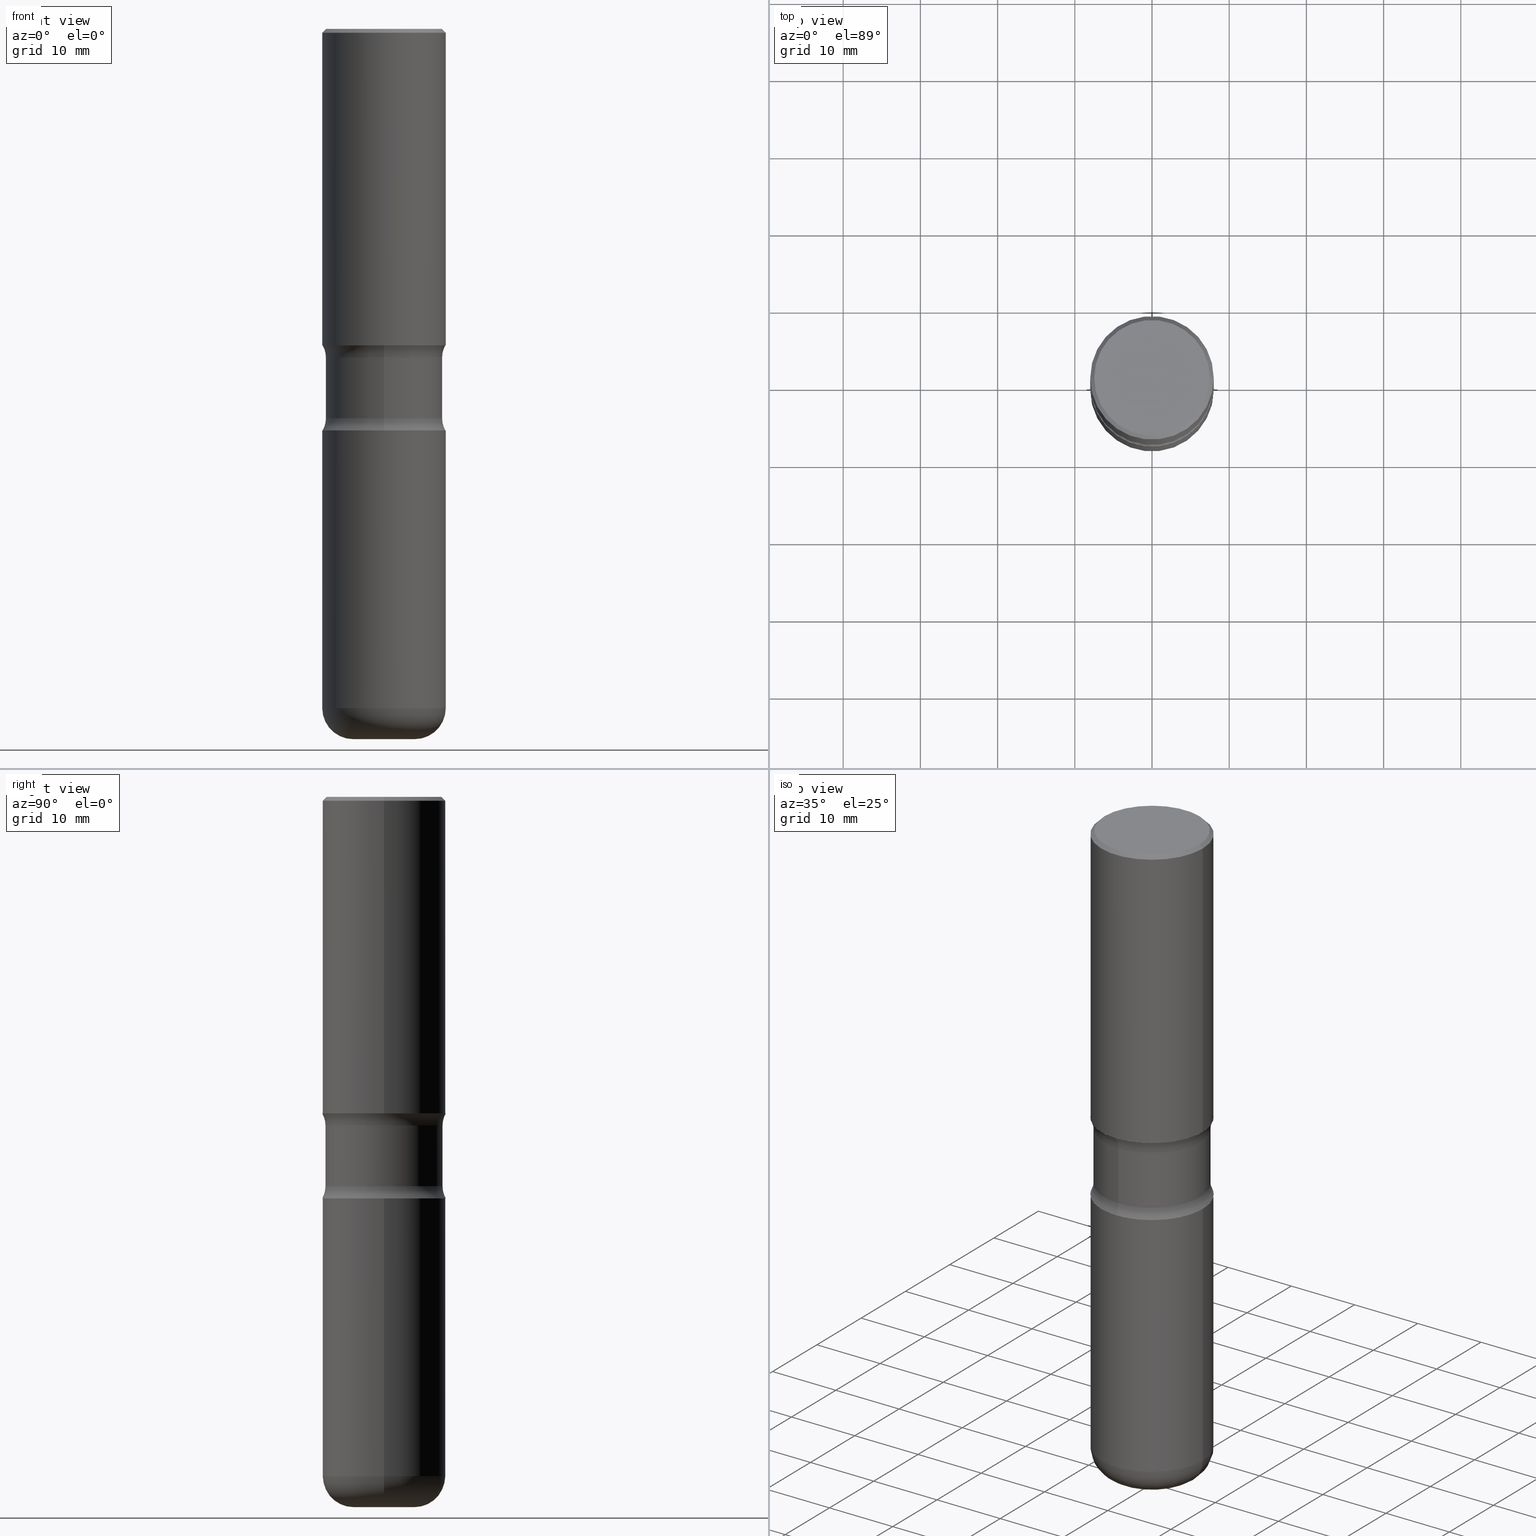
[diagram: canonical four-view strip — front | top / right | iso, engineering-drawing reading convention]
A machine part, canonical four-view strip (front | top / right | iso — engineering-drawing reading convention). The complete STEP part file that produces these views, byte-faithful:
ISO-10303-21;
HEADER;
FILE_DESCRIPTION (( 'STEP AP203' ),
    '1' );
FILE_NAME ('44753.STEP',
    '2024-03-02T02:47:53',
    ( '' ),
    ( '' ),
    'SwSTEP 2.0',
    'SolidWorks 2023',
    '' );
FILE_SCHEMA (( 'CONFIG_CONTROL_DESIGN' ));
ENDSEC;

DATA;
#1 = DIRECTION ( 'NONE',  ( 2.438088387897960049E-29, -3.491481338843145188E-15, -1.000000000000000000 ) ) ;
#2 = CARTESIAN_POINT ( 'NONE',  ( -2.104286248366432366E-15, -0.2985000000000057052, -1.676083042035704018 ) ) ;
#3 =( GEOMETRIC_REPRESENTATION_CONTEXT ( 3 ) GLOBAL_UNCERTAINTY_ASSIGNED_CONTEXT ( ( #343 ) ) GLOBAL_UNIT_ASSIGNED_CONTEXT ( ( #191, #533, #56 ) ) REPRESENTATION_CONTEXT ( 'NONE', 'WORKASPACE' ) );
#4 = CIRCLE ( 'NONE', #256, 0.2984999999999998210 ) ;
#5 = CIRCLE ( 'NONE', #468, 0.2949500000000001565 ) ;
#6 = FACE_OUTER_BOUND ( 'NONE', #372, .T. ) ;
#7 = CARTESIAN_POINT ( 'NONE',  ( 0.000000000000000000, 0.000000000000000000, 0.000000000000000000 ) ) ;
#8 = DIRECTION ( 'NONE',  ( -2.445468806185136597E-29, 3.491481338843145583E-15, 1.000000000000000000 ) ) ;
#9 = DIRECTION ( 'NONE',  ( 2.431229257173367832E-29, -3.511873183492796268E-15, -1.000000000000000000 ) ) ;
#10 = EDGE_CURVE ( 'NONE', #485, #164, #238, .T. ) ;
#11 = CARTESIAN_POINT ( 'NONE',  ( 4.855668754776393966E-29, -6.930084013723182929E-15, -1.985216957964293094 ) ) ;
#12 = EDGE_CURVE ( 'NONE', #544, #481, #227, .T. ) ;
#13 = CARTESIAN_POINT ( 'NONE',  ( -3.131554243005663153E-46, 4.471029511141347348E-32, 1.280553747030124924E-17 ) ) ;
#14 = AXIS2_PLACEMENT_3D ( 'NONE', #302, #431, #254 ) ;
#15 = EDGE_CURVE ( 'NONE', #530, #539, #168, .T. ) ;
#16 = FACE_OUTER_BOUND ( 'NONE', #369, .T. ) ;
#17 = VECTOR ( 'NONE', #434, 39.37007874015748143 ) ;
#18 = AXIS2_PLACEMENT_3D ( 'NONE', #289, #519, #332 ) ;
#19 = VERTEX_POINT ( 'NONE', #158 ) ;
#20 = DIRECTION ( 'NONE',  ( -2.445468806185136597E-29, 3.491481338843145583E-15, 1.000000000000000000 ) ) ;
#21 = CARTESIAN_POINT ( 'NONE',  ( 8.857488016002564476E-29, -1.264614540928987199E-14, -3.621999999999999886 ) ) ;
#22 = ORIENTED_EDGE ( 'NONE', *, *, #46, .F. ) ;
#23 = DIRECTION ( 'NONE',  ( 1.000000000000000000, -6.982962677686264344E-15, 0.000000000000000000 ) ) ;
#24 = PRODUCT_RELATED_PRODUCT_CATEGORY ( 'detail', '', ( #75 ) ) ;
#25 = ORIENTED_EDGE ( 'NONE', *, *, #10, .T. ) ;
#26 = DIRECTION ( 'NONE',  ( 1.000000000000000000, -6.982962677686264344E-15, 0.000000000000000000 ) ) ;
#27 = EDGE_LOOP ( 'NONE', ( #393, #342 ) ) ;
#28 = DIRECTION ( 'NONE',  ( 1.000000000000000000, -6.860497997771530774E-15, 4.840549151551353916E-29 ) ) ;
#29 = CC_DESIGN_SECURITY_CLASSIFICATION ( #327, ( #504 ) ) ;
#30 = CIRCLE ( 'NONE', #279, 0.2984999999999998210 ) ;
#31 = CARTESIAN_POINT ( 'NONE',  ( -2.905420902056200286E-15, -0.4235000000000055387, -1.676083042035703574 ) ) ;
#32 = EDGE_CURVE ( 'NONE', #485, #443, #498, .T. ) ;
#33 = CARTESIAN_POINT ( 'NONE',  ( 5.006363740022209438E-29, -7.147760596879685046E-15, -2.047199999999999243 ) ) ;
#34 = APPROVAL_STATUS ( 'not_yet_approved' ) ;
#35 = APPLICATION_CONTEXT ( 'configuration controlled 3d designs of mechanical parts and assemblies' ) ;
#36 = AXIS2_PLACEMENT_3D ( 'NONE', #134, #219, #392 ) ;
#37 = DIRECTION ( 'NONE',  ( -2.445468806185136597E-29, 3.491481338843145583E-15, 1.000000000000000000 ) ) ;
#38 = CARTESIAN_POINT ( 'NONE',  ( 0.3149500000000001743, -2.230543471175008239E-15, -0.02000000000000006981 ) ) ;
#39 = VERTEX_POINT ( 'NONE', #490 ) ;
#40 = EDGE_CURVE ( 'NONE', #378, #437, #109, .T. ) ;
#41 = CIRCLE ( 'NONE', #358, 0.1569500000000003948 ) ;
#42 = DIRECTION ( 'NONE',  ( 6.982962677686264344E-15, 1.000000000000000000, -3.469564049740291192E-15 ) ) ;
#43 = DIRECTION ( 'NONE',  ( 2.431229257173367832E-29, -3.511873183492796268E-15, -1.000000000000000000 ) ) ;
#44 = EDGE_CURVE ( 'NONE', #530, #207, #303, .T. ) ;
#45 = CARTESIAN_POINT ( 'NONE',  ( 0.000000000000000000, 0.000000000000000000, 0.000000000000000000 ) ) ;
#46 = EDGE_CURVE ( 'NONE', #39, #65, #511, .T. ) ;
#47 = CARTESIAN_POINT ( 'NONE',  ( 4.146499777326381489E-29, -5.783716463777509239E-15, -1.676083042035705128 ) ) ;
#48 = ORIENTED_EDGE ( 'NONE', *, *, #165, .T. ) ;
#49 = ADVANCED_BREP_SHAPE_REPRESENTATION ( '44753', ( #104, #472, #101, #237 ), #3 ) ;
#50 = CARTESIAN_POINT ( 'NONE',  ( 8.471103944625313198E-29, -1.209449135775265635E-14, -3.463999999999999968 ) ) ;
#51 = LINE ( 'NONE', #521, #320 ) ;
#52 = EDGE_CURVE ( 'NONE', #443, #65, #4, .T. ) ;
#53 = FACE_OUTER_BOUND ( 'NONE', #495, .T. ) ;
#54 = CARTESIAN_POINT ( 'NONE',  ( 2.199284095337330103E-15, 0.3149499999999945676, -1.614100000000000312 ) ) ;
#55 = CARTESIAN_POINT ( 'NONE',  ( 3.953398348740424918E-29, -5.626768321108955444E-15, -1.614099999999999424 ) ) ;
#56 =( NAMED_UNIT ( * ) SI_UNIT ( $, .STERADIAN. ) SOLID_ANGLE_UNIT ( ) );
#57 = ORIENTED_EDGE ( 'NONE', *, *, #263, .T. ) ;
#58 = ORIENTED_EDGE ( 'NONE', *, *, #384, .T. ) ;
#59 = PERSON_AND_ORGANIZATION ( #425, #215 ) ;
#60 = ORIENTED_EDGE ( 'NONE', *, *, #324, .T. ) ;
#61 = CONICAL_SURFACE ( 'NONE', #143, 0.3149500000000001743, 0.7853981633974460586 ) ;
#62 = PRODUCT_DEFINITION ( 'UNKNOWN', '', #504, #416 ) ;
#63 = VERTEX_POINT ( 'NONE', #76 ) ;
#64 = EDGE_CURVE ( 'NONE', #351, #39, #479, .T. ) ;
#65 = VERTEX_POINT ( 'NONE', #459 ) ;
#66 = ORIENTED_EDGE ( 'NONE', *, *, #486, .F. ) ;
#67 = DIRECTION ( 'NONE',  ( 1.000000000000000000, -6.982962677686267499E-15, 4.876176775795936353E-29 ) ) ;
#68 = DIRECTION ( 'NONE',  ( 6.982962677686264344E-15, 1.000000000000000000, -3.469564049740290403E-15 ) ) ;
#69 = APPROVAL_DATE_TIME ( #120, #493 ) ;
#70 = LINE ( 'NONE', #145, #366 ) ;
#71 = DIRECTION ( 'NONE',  ( -2.445468806185136597E-29, 3.491481338843145583E-15, 1.000000000000000000 ) ) ;
#72 = COORDINATED_UNIVERSAL_TIME_OFFSET ( 5, 0, .BEHIND. ) ;
#73 = AXIS2_PLACEMENT_3D ( 'NONE', #97, #507, #42 ) ;
#74 = EDGE_LOOP ( 'NONE', ( #375, #155, #523, #226 ) ) ;
#75 = PRODUCT ( '44753', '44753', '', ( #210 ) ) ;
#76 = CARTESIAN_POINT ( 'NONE',  ( -0.3149500000000002298, -7.383271631039733137E-15, -2.047199999999999243 ) ) ;
#77 = DIRECTION ( 'NONE',  ( 0.7071067811865459074, -7.319954787623249734E-15, -0.7071067811865491270 ) ) ;
#78 = COORDINATED_UNIVERSAL_TIME_OFFSET ( 5, 0, .BEHIND. ) ;
#79 = CIRCLE ( 'NONE', #395, 0.1579999999999999183 ) ;
#80 = AXIS2_PLACEMENT_3D ( 'NONE', #45, #450, #67 ) ;
#81 = EDGE_LOOP ( 'NONE', ( #66, #261 ) ) ;
#82 = ORIENTED_EDGE ( 'NONE', *, *, #280, .F. ) ;
#83 = FACE_OUTER_BOUND ( 'NONE', #410, .T. ) ;
#84 = CARTESIAN_POINT ( 'NONE',  ( 3.947231200063427485E-29, -5.635600029026719491E-15, -1.614099999999999424 ) ) ;
#85 = CIRCLE ( 'NONE', #98, 0.3149500000000001743 ) ;
#86 = AXIS2_PLACEMENT_3D ( 'NONE', #382, #518, #179 ) ;
#87 = FACE_OUTER_BOUND ( 'NONE', #208, .T. ) ;
#88 = CARTESIAN_POINT ( 'NONE',  ( -0.3149500000000003408, -6.148604816253523528E-16, -1.614099999999999424 ) ) ;
#89 = CYLINDRICAL_SURFACE ( 'NONE', #86, 0.3149500000000002853 ) ;
#90 = CARTESIAN_POINT ( 'NONE',  ( 0.3149500000000002853, -2.199284095337291843E-15, 1.535751875536931531E-29 ) ) ;
#91 = ADVANCED_FACE ( 'NONE', ( #466 ), #123, .F. ) ;
#92 = FACE_OUTER_BOUND ( 'NONE', #550, .T. ) ;
#93 = CARTESIAN_POINT ( 'NONE',  ( 4.854786144211427985E-29, -6.931347962287286894E-15, -1.985216957964293094 ) ) ;
#94 = LOCAL_TIME ( 21, 47, 53.00000000000000000, #408 ) ;
#95 = CC_DESIGN_PERSON_AND_ORGANIZATION_ASSIGNMENT ( #234, #415, ( #504 ) ) ;
#96 = VECTOR ( 'NONE', #77, 39.37007874015748143 ) ;
#97 = CARTESIAN_POINT ( 'NONE',  ( 3.953398348740424918E-29, -5.626768321108955444E-15, -1.614099999999999424 ) ) ;
#98 = AXIS2_PLACEMENT_3D ( 'NONE', #386, #214, #299 ) ;
#99 = DIRECTION ( 'NONE',  ( 6.982962677686265922E-15, 1.000000000000000000, -3.511873183492796268E-15 ) ) ;
#100 = EDGE_CURVE ( 'NONE', #462, #437, #340, .T. ) ;
#101 = MANIFOLD_SOLID_BREP ( 'Body-Move/Copy2[4]', #246 ) ;
#102 = VERTEX_POINT ( 'NONE', #383 ) ;
#103 = CARTESIAN_POINT ( 'NONE',  ( 0.2949500000000001565, -2.127023677808861258E-15, 1.280553747031588939E-17 ) ) ;
#104 = MANIFOLD_SOLID_BREP ( 'Body-Move/Copy2[1]', #282 ) ;
#105 = ORIENTED_EDGE ( 'NONE', *, *, #32, .T. ) ;
#106 = APPROVAL_PERSON_ORGANIZATION ( #163, #241, #323 ) ;
#107 = ORIENTED_EDGE ( 'NONE', *, *, #300, .F. ) ;
#108 = CIRCLE ( 'NONE', #492, 0.3149500000000001743 ) ;
#109 = LINE ( 'NONE', #38, #96 ) ;
#110 = CARTESIAN_POINT ( 'NONE',  ( 5.006363740022209438E-29, -7.147760596879685046E-15, -2.047199999999999243 ) ) ;
#111 = DIRECTION ( 'NONE',  ( 2.438088387897960049E-29, -3.491481338843145188E-15, -1.000000000000000000 ) ) ;
#112 = ORIENTED_EDGE ( 'NONE', *, *, #10, .F. ) ;
#113 = CARTESIAN_POINT ( 'NONE',  ( 2.199284095337341147E-15, 0.3149499999999930688, -2.047200000000000131 ) ) ;
#114 = CARTESIAN_POINT ( 'NONE',  ( -0.3149500000000001743, 2.129454468560427756E-15, -0.02000000000000006981 ) ) ;
#115 = CALENDAR_DATE ( 2024, 1, 3 ) ;
#116 = CC_DESIGN_PERSON_AND_ORGANIZATION_ASSIGNMENT ( #203, #546, ( #62 ) ) ;
#117 = VECTOR ( 'NONE', #276, 39.37007874015748143 ) ;
#118 = AXIS2_PLACEMENT_3D ( 'NONE', #110, #452, #68 ) ;
#119 = APPROVAL_DATE_TIME ( #503, #363 ) ;
#120 = DATE_AND_TIME ( #362, #94 ) ;
#121 = CYLINDRICAL_SURFACE ( 'NONE', #125, 0.3149500000000002853 ) ;
#122 = APPROVAL_STATUS ( 'not_yet_approved' ) ;
#123 = TOROIDAL_SURFACE ( 'NONE', #556, 0.4234999999999998210, 0.1250000000000000000 ) ;
#124 = ORIENTED_EDGE ( 'NONE', *, *, #384, .F. ) ;
#125 = AXIS2_PLACEMENT_3D ( 'NONE', #417, #37, #553 ) ;
#126 = CARTESIAN_POINT ( 'NONE',  ( -0.1569500000000003670, -1.097929453397717650E-14, -3.463999999999999968 ) ) ;
#127 = ORIENTED_EDGE ( 'NONE', *, *, #300, .T. ) ;
#128 = DIRECTION ( 'NONE',  ( -2.431229257173367552E-29, 3.511873183492796268E-15, 1.000000000000000000 ) ) ;
#129 = DIRECTION ( 'NONE',  ( 6.982962677686265922E-15, 1.000000000000000000, -3.511873183492796268E-15 ) ) ;
#130 = CIRCLE ( 'NONE', #200, 0.3149500000000002298 ) ;
#131 = AXIS2_PLACEMENT_3D ( 'NONE', #249, #509, #129 ) ;
#132 = PERSON_AND_ORGANIZATION_ROLE ( 'design_owner' ) ;
#133 = CARTESIAN_POINT ( 'NONE',  ( 2.084414359289390435E-15, 0.2984999999999940479, -1.676083042035706239 ) ) ;
#134 = CARTESIAN_POINT ( 'NONE',  ( 4.146499777326381489E-29, -5.783716463777509239E-15, -1.676083042035705128 ) ) ;
#135 = PERSON_AND_ORGANIZATION ( #425, #215 ) ;
#136 = CYLINDRICAL_SURFACE ( 'NONE', #313, 0.2984999999999998210 ) ;
#137 = DIRECTION ( 'NONE',  ( 2.431229257173367832E-29, -3.511873183492796268E-15, -1.000000000000000000 ) ) ;
#138 = EDGE_CURVE ( 'NONE', #218, #462, #435, .T. ) ;
#139 = CARTESIAN_POINT ( 'NONE',  ( 4.890937612370289799E-31, -6.982962677686315028E-17, -0.02000000000000006981 ) ) ;
#140 = FACE_OUTER_BOUND ( 'NONE', #402, .T. ) ;
#141 = DIMENSIONAL_EXPONENTS ( 1.000000000000000000, 0.000000000000000000, 0.000000000000000000, 0.000000000000000000, 0.000000000000000000, 0.000000000000000000, 0.000000000000000000 ) ;
#142 = CARTESIAN_POINT ( 'NONE',  ( 2.059624841783565247E-15, 0.2949500000000001565, -1.023409652156635730E-15 ) ) ;
#143 = AXIS2_PLACEMENT_3D ( 'NONE', #478, #515, #259 ) ;
#144 = ORIENTED_EDGE ( 'NONE', *, *, #371, .T. ) ;
#145 = CARTESIAN_POINT ( 'NONE',  ( -0.3149500000000002853, 2.237854346276437562E-15, -1.549218606675783797E-29 ) ) ;
#146 = CARTESIAN_POINT ( 'NONE',  ( -0.1569500000000003948, -1.069379279849530783E-14, -3.621999999999999886 ) ) ;
#147 = EDGE_CURVE ( 'NONE', #539, #102, #79, .T. ) ;
#148 = ORIENTED_EDGE ( 'NONE', *, *, #147, .T. ) ;
#149 = CARTESIAN_POINT ( 'NONE',  ( -3.131554243005663153E-46, 4.471029511141347348E-32, 1.280553747030124924E-17 ) ) ;
#150 = VERTEX_POINT ( 'NONE', #2 ) ;
#151 = EDGE_CURVE ( 'NONE', #207, #63, #51, .T. ) ;
#152 = APPROVAL_STATUS ( 'not_yet_approved' ) ;
#153 = EDGE_LOOP ( 'NONE', ( #22, #354, #58, #172 ) ) ;
#154 = AXIS2_PLACEMENT_3D ( 'NONE', #173, #334, #379 ) ;
#155 = ORIENTED_EDGE ( 'NONE', *, *, #44, .T. ) ;
#156 = DIRECTION ( 'NONE',  ( 1.000000000000000000, -6.982962677686265922E-15, 4.876176775795935793E-29 ) ) ;
#157 = EDGE_LOOP ( 'NONE', ( #265, #183, #148, #348 ) ) ;
#158 = CARTESIAN_POINT ( 'NONE',  ( -2.160713844398105103E-15, -0.3149500000000057254, -1.614099999999998314 ) ) ;
#159 = CALENDAR_DATE ( 2024, 1, 3 ) ;
#160 = CYLINDRICAL_SURFACE ( 'NONE', #513, 0.3149500000000002853 ) ;
#161 = AXIS2_PLACEMENT_3D ( 'NONE', #176, #43, #217 ) ;
#162 = AXIS2_PLACEMENT_3D ( 'NONE', #301, #211, #508 ) ;
#163 = PERSON_AND_ORGANIZATION ( #425, #215 ) ;
#164 = VERTEX_POINT ( 'NONE', #54 ) ;
#165 = EDGE_CURVE ( 'NONE', #150, #485, #547, .T. ) ;
#166 = PERSON_AND_ORGANIZATION ( #425, #215 ) ;
#167 = ORIENTED_EDGE ( 'NONE', *, *, #280, .T. ) ;
#168 = CIRCLE ( 'NONE', #365, 0.1569500000000003948 ) ;
#169 = ADVANCED_FACE ( 'NONE', ( #388 ), #469, .F. ) ;
#170 = AXIS2_PLACEMENT_3D ( 'NONE', #199, #316, #231 ) ;
#171 = CARTESIAN_POINT ( 'NONE',  ( 0.3149500000000001743, -2.230543471175008239E-15, -0.02000000000000006981 ) ) ;
#172 = ORIENTED_EDGE ( 'NONE', *, *, #52, .T. ) ;
#173 = CARTESIAN_POINT ( 'NONE',  ( 4.854786144211427985E-29, -6.931347962287286894E-15, -1.985216957964293094 ) ) ;
#174 = DIRECTION ( 'NONE',  ( 2.431229257173367832E-29, -3.511873183492796268E-15, -1.000000000000000000 ) ) ;
#175 = DIRECTION ( 'NONE',  ( 6.982962677686266711E-15, 1.000000000000000000, -3.660767830705882322E-15 ) ) ;
#176 = CARTESIAN_POINT ( 'NONE',  ( 4.104093333986238710E-29, -5.844444904265456773E-15, -1.676083042035705128 ) ) ;
#177 = AXIS2_PLACEMENT_3D ( 'NONE', #126, #239, #414 ) ;
#178 = CIRCLE ( 'NONE', #377, 0.3149500000000001743 ) ;
#179 = DIRECTION ( 'NONE',  ( 1.000000000000000000, -6.982962677686267499E-15, 4.876176775795936353E-29 ) ) ;
#180 = CARTESIAN_POINT ( 'NONE',  ( 8.835063574218829825E-29, -1.267825848624413908E-14, -3.621999999999999442 ) ) ;
#181 = DIRECTION ( 'NONE',  ( 1.000000000000000000, -6.982962677686267499E-15, 0.000000000000000000 ) ) ;
#182 = CARTESIAN_POINT ( 'NONE',  ( -2.047858652334712692E-15, -0.2985000000000124776, -3.621999999999998110 ) ) ;
#183 = ORIENTED_EDGE ( 'NONE', *, *, #15, .T. ) ;
#184 = CYLINDRICAL_SURFACE ( 'NONE', #505, 0.2984999999999998210 ) ;
#185 = ORIENTED_EDGE ( 'NONE', *, *, #220, .T. ) ;
#186 = EDGE_LOOP ( 'NONE', ( #204, #60 ) ) ;
#187 = DIRECTION ( 'NONE',  ( 1.000000000000000000, -6.982962677686267499E-15, 4.876053491004732105E-29 ) ) ;
#188 = CIRCLE ( 'NONE', #336, 0.1250000000000000000 ) ;
#189 = ORIENTED_EDGE ( 'NONE', *, *, #40, .T. ) ;
#190 = EDGE_LOOP ( 'NONE', ( #349, #264 ) ) ;
#191 =( CONVERSION_BASED_UNIT ( 'INCH', #400 ) LENGTH_UNIT ( ) NAMED_UNIT ( #141 ) );
#192 = ORIENTED_EDGE ( 'NONE', *, *, #371, .F. ) ;
#193 = DIRECTION ( 'NONE',  ( 6.860497997771531562E-15, 1.000000000000000000, 0.000000000000000000 ) ) ;
#194 = AXIS2_PLACEMENT_3D ( 'NONE', #529, #391, #314 ) ;
#195 = ORIENTED_EDGE ( 'NONE', *, *, #464, .F. ) ;
#196 = AXIS2_PLACEMENT_3D ( 'NONE', #399, #352, #26 ) ;
#197 = DATE_AND_TIME ( #411, #549 ) ;
#198 = EDGE_CURVE ( 'NONE', #437, #481, #85, .T. ) ;
#199 = CARTESIAN_POINT ( 'NONE',  ( 4.104093333986238710E-29, -5.844444904265456773E-15, -1.676083042035705128 ) ) ;
#200 = AXIS2_PLACEMENT_3D ( 'NONE', #494, #350, #23 ) ;
#201 = CLOSED_SHELL ( 'NONE', ( #390, #467, #232, #522, #285, #397 ) ) ;
#202 = CIRCLE ( 'NONE', #267, 0.3149500000000003963 ) ;
#203 = PERSON_AND_ORGANIZATION ( #425, #215 ) ;
#204 = ORIENTED_EDGE ( 'NONE', *, *, #64, .T. ) ;
#205 = CARTESIAN_POINT ( 'NONE',  ( -2.905420902056193186E-15, -0.4235000000000067044, -1.985216957964291762 ) ) ;
#206 = ORIENTED_EDGE ( 'NONE', *, *, #100, .T. ) ;
#207 = VERTEX_POINT ( 'NONE', #335 ) ;
#208 = EDGE_LOOP ( 'NONE', ( #398, #309, #501, #124 ) ) ;
#209 = TOROIDAL_SURFACE ( 'NONE', #154, 0.4234999999999998210, 0.1250000000000000000 ) ;
#210 = MECHANICAL_CONTEXT ( 'NONE', #288, 'mechanical' ) ;
#211 = DIRECTION ( 'NONE',  ( -2.445468806185136597E-29, 3.491481338843145583E-15, 1.000000000000000000 ) ) ;
#212 = DIRECTION ( 'NONE',  ( -6.982962677686266711E-15, -1.000000000000000000, 3.491481338843145583E-15 ) ) ;
#213 = DIRECTION ( 'NONE',  ( 2.445468806185136597E-29, -3.491481338843145583E-15, -1.000000000000000000 ) ) ;
#214 = DIRECTION ( 'NONE',  ( -2.445468806185136597E-29, 3.491481338843145583E-15, 1.000000000000000000 ) ) ;
#215 = ORGANIZATION ( 'UNSPECIFIED', 'UNSPECIFIED', '' ) ;
#216 = VECTOR ( 'NONE', #174, 39.37007874015748143 ) ;
#217 = DIRECTION ( 'NONE',  ( 6.982962677686265922E-15, 1.000000000000000000, -3.660767830705881533E-15 ) ) ;
#218 = VERTEX_POINT ( 'NONE', #88 ) ;
#219 = DIRECTION ( 'NONE',  ( 2.431229257173367832E-29, -3.511873183492796268E-15, -1.000000000000000000 ) ) ;
#220 = EDGE_CURVE ( 'NONE', #150, #65, #476, .T. ) ;
#221 = ORIENTED_EDGE ( 'NONE', *, *, #198, .T. ) ;
#222 = AXIS2_PLACEMENT_3D ( 'NONE', #47, #9, #252 ) ;
#223 = AXIS2_PLACEMENT_3D ( 'NONE', #559, #128, #438 ) ;
#224 = DIRECTION ( 'NONE',  ( -2.445468806185136597E-29, 3.491481338843145583E-15, 1.000000000000000000 ) ) ;
#225 = AXIS2_PLACEMENT_3D ( 'NONE', #142, #111, #489 ) ;
#226 = ORIENTED_EDGE ( 'NONE', *, *, #147, .F. ) ;
#227 = LINE ( 'NONE', #114, #117 ) ;
#228 = ORIENTED_EDGE ( 'NONE', *, *, #532, .T. ) ;
#229 = ORIENTED_EDGE ( 'NONE', *, *, #500, .T. ) ;
#230 = ORIENTED_EDGE ( 'NONE', *, *, #294, .T. ) ;
#231 = DIRECTION ( 'NONE',  ( 6.982962677686265922E-15, 1.000000000000000000, -3.660767830705881533E-15 ) ) ;
#232 = ADVANCED_FACE ( 'NONE', ( #140 ), #61, .T. ) ;
#233 = DIRECTION ( 'NONE',  ( 1.000000000000000000, -6.982962677686262766E-15, 0.000000000000000000 ) ) ;
#234 = PERSON_AND_ORGANIZATION ( #425, #215 ) ;
#235 = PERSON_AND_ORGANIZATION ( #425, #215 ) ;
#236 = ADVANCED_FACE ( 'NONE', ( #439 ), #538, .F. ) ;
#237 = AXIS2_PLACEMENT_3D ( 'NONE', #7, #429, #516 ) ;
#238 = CIRCLE ( 'NONE', #328, 0.1249999999999999029 ) ;
#239 = DIRECTION ( 'NONE',  ( 7.105427357601001859E-15, 1.000000000000000000, -3.491481338843145583E-15 ) ) ;
#240 = CALENDAR_DATE ( 2024, 1, 3 ) ;
#241 = APPROVAL ( #122, 'UNSPECIFIED' ) ;
#242 = DIRECTION ( 'NONE',  ( 6.860497997771529985E-15, 1.000000000000000000, 0.000000000000000000 ) ) ;
#243 = PLANE ( 'NONE',  #436 ) ;
#244 = DIRECTION ( 'NONE',  ( -2.445468806185136597E-29, 3.491481338843145583E-15, 1.000000000000000000 ) ) ;
#245 = ADVANCED_FACE ( 'NONE', ( #6 ), #184, .T. ) ;
#246 = CLOSED_SHELL ( 'NONE', ( #463, #488, #169, #236, #278, #426, #91, #245 ) ) ;
#247 = AXIS2_PLACEMENT_3D ( 'NONE', #407, #270, #156 ) ;
#248 = FACE_OUTER_BOUND ( 'NONE', #448, .T. ) ;
#249 = CARTESIAN_POINT ( 'NONE',  ( 3.947231200063427485E-29, -5.635600029026719491E-15, -1.614099999999999424 ) ) ;
#250 = EDGE_CURVE ( 'NONE', #65, #443, #30, .T. ) ;
#251 = CARTESIAN_POINT ( 'NONE',  ( 2.084414359289397929E-15, 0.2984999999999928821, -1.985216957964294204 ) ) ;
#252 = DIRECTION ( 'NONE',  ( 6.982962677686265922E-15, 1.000000000000000000, -3.511873183492796268E-15 ) ) ;
#253 = CARTESIAN_POINT ( 'NONE',  ( 8.835063574218829825E-29, -1.267825848624413908E-14, -3.621999999999999442 ) ) ;
#254 = DIRECTION ( 'NONE',  ( 1.000000000000000000, -6.982962677686265922E-15, 0.000000000000000000 ) ) ;
#255 = CC_DESIGN_APPROVAL ( #241, ( #504 ) ) ;
#256 = AXIS2_PLACEMENT_3D ( 'NONE', #460, #554, #502 ) ;
#257 = CIRCLE ( 'NONE', #170, 0.2984999999999998765 ) ;
#258 = DIRECTION ( 'NONE',  ( 2.431229257173367832E-29, -3.511873183492796268E-15, -1.000000000000000000 ) ) ;
#259 = DIRECTION ( 'NONE',  ( -1.000000000000000000, 6.982962677686265922E-15, 0.000000000000000000 ) ) ;
#260 = CC_DESIGN_DATE_AND_TIME_ASSIGNMENT ( #197, #284, ( #327 ) ) ;
#261 = ORIENTED_EDGE ( 'NONE', *, *, #482, .F. ) ;
#262 = DIRECTION ( 'NONE',  ( -1.000000000000000000, 6.982962677686265922E-15, -4.883557194083112340E-29 ) ) ;
#263 = EDGE_CURVE ( 'NONE', #102, #207, #329, .T. ) ;
#264 = ORIENTED_EDGE ( 'NONE', *, *, #138, .F. ) ;
#265 = ORIENTED_EDGE ( 'NONE', *, *, #44, .F. ) ;
#266 = CC_DESIGN_APPROVAL ( #363, ( #62 ) ) ;
#267 = AXIS2_PLACEMENT_3D ( 'NONE', #50, #8, #181 ) ;
#268 = LOCAL_TIME ( 21, 47, 53.00000000000000000, #78 ) ;
#269 = ORIENTED_EDGE ( 'NONE', *, *, #517, .F. ) ;
#270 = DIRECTION ( 'NONE',  ( -2.438088387897960049E-29, 3.491481338843145188E-15, 1.000000000000000000 ) ) ;
#271 = ORIENTED_EDGE ( 'NONE', *, *, #506, .T. ) ;
#272 = CARTESIAN_POINT ( 'NONE',  ( 8.857488016002564476E-29, -1.264614540928987199E-14, -3.621999999999999886 ) ) ;
#273 = EDGE_CURVE ( 'NONE', #462, #218, #413, .T. ) ;
#274 = CARTESIAN_POINT ( 'NONE',  ( 0.1569500000000003948, -1.374212140155273374E-14, -3.621999999999999886 ) ) ;
#275 = ORIENTED_EDGE ( 'NONE', *, *, #220, .F. ) ;
#276 = DIRECTION ( 'NONE',  ( -0.7071067811865459074, 2.468850131082240100E-15, -0.7071067811865491270 ) ) ;
#277 = SECURITY_CLASSIFICATION_LEVEL ( 'unclassified' ) ;
#278 = ADVANCED_FACE ( 'NONE', ( #338 ), #380, .F. ) ;
#279 = AXIS2_PLACEMENT_3D ( 'NONE', #11, #137, #525 ) ;
#280 = EDGE_CURVE ( 'NONE', #544, #378, #283, .T. ) ;
#281 = DATE_AND_TIME ( #159, #405 ) ;
#282 = CLOSED_SHELL ( 'NONE', ( #514, #491, #527, #496, #420, #458 ) ) ;
#283 = CIRCLE ( 'NONE', #406, 0.2949500000000001565 ) ;
#284 = DATE_TIME_ROLE ( 'classification_date' ) ;
#285 = ADVANCED_FACE ( 'NONE', ( #537 ), #531, .F. ) ;
#286 = ORIENTED_EDGE ( 'NONE', *, *, #100, .F. ) ;
#287 = DIRECTION ( 'NONE',  ( 1.000000000000000000, -6.982962677686263555E-15, 4.883557194083111780E-29 ) ) ;
#288 = APPLICATION_CONTEXT ( 'configuration controlled 3d designs of mechanical parts and assemblies' ) ;
#289 = CARTESIAN_POINT ( 'NONE',  ( 8.471103944625313198E-29, -1.209449135775265635E-14, -3.463999999999999968 ) ) ;
#290 = CARTESIAN_POINT ( 'NONE',  ( 0.3149500000000002298, -9.347044692216974917E-15, -2.047199999999999243 ) ) ;
#291 = DIRECTION ( 'NONE',  ( 2.431229257173367832E-29, -3.511873183492796268E-15, -1.000000000000000000 ) ) ;
#292 = AXIS2_PLACEMENT_3D ( 'NONE', #84, #244, #424 ) ;
#293 = APPROVAL_PERSON_ORGANIZATION ( #543, #493, #318 ) ;
#294 = EDGE_CURVE ( 'NONE', #63, #449, #423, .T. ) ;
#295 = FACE_OUTER_BOUND ( 'NONE', #311, .T. ) ;
#296 = DIRECTION ( 'NONE',  ( 6.982962677686266711E-15, 1.000000000000000000, -3.660767830705882322E-15 ) ) ;
#297 = APPLICATION_PROTOCOL_DEFINITION ( 'international standard', 'config_control_design', 1994, #35 ) ;
#298 = LINE ( 'NONE', #421, #480 ) ;
#299 = DIRECTION ( 'NONE',  ( 1.000000000000000000, -6.982962677686265922E-15, 0.000000000000000000 ) ) ;
#300 = EDGE_CURVE ( 'NONE', #150, #19, #346, .T. ) ;
#301 = CARTESIAN_POINT ( 'NONE',  ( 8.471103944625313198E-29, -1.209449135775265635E-14, -3.463999999999999968 ) ) ;
#302 = CARTESIAN_POINT ( 'NONE',  ( 3.947231200063427485E-29, -5.635600029026719491E-15, -1.614099999999999424 ) ) ;
#303 = CIRCLE ( 'NONE', #177, 0.1579999999999999183 ) ;
#304 = AXIS2_PLACEMENT_3D ( 'NONE', #385, #213, #337 ) ;
#305 = ORIENTED_EDGE ( 'NONE', *, *, #517, .T. ) ;
#306 = DIRECTION ( 'NONE',  ( -2.445468806185136877E-29, 3.491481338843145188E-15, 1.000000000000000000 ) ) ;
#307 = EDGE_CURVE ( 'NONE', #539, #530, #41, .T. ) ;
#308 =( LENGTH_UNIT ( ) NAMED_UNIT ( * ) SI_UNIT ( $, .METRE. ) );
#309 = ORIENTED_EDGE ( 'NONE', *, *, #46, .T. ) ;
#310 = DIRECTION ( 'NONE',  ( 2.431229257173367832E-29, -3.511873183492796268E-15, -1.000000000000000000 ) ) ;
#311 = EDGE_LOOP ( 'NONE', ( #269, #189, #221, #534 ) ) ;
#312 = AXIS2_PLACEMENT_3D ( 'NONE', #33, #370, #552 ) ;
#313 = AXIS2_PLACEMENT_3D ( 'NONE', #253, #470, #175 ) ;
#314 = DIRECTION ( 'NONE',  ( -1.000000000000000000, 6.982962677686265922E-15, -4.876176775795935793E-29 ) ) ;
#315 = FACE_OUTER_BOUND ( 'NONE', #27, .T. ) ;
#316 = DIRECTION ( 'NONE',  ( 2.431229257173367832E-29, -3.511873183492796268E-15, -1.000000000000000000 ) ) ;
#317 = ORIENTED_EDGE ( 'NONE', *, *, #333, .T. ) ;
#318 = APPROVAL_ROLE ( '' ) ;
#319 = ORIENTED_EDGE ( 'NONE', *, *, #294, .F. ) ;
#320 = VECTOR ( 'NONE', #473, 39.37007874015748143 ) ;
#321 = DIRECTION ( 'NONE',  ( -2.445468806185136597E-29, 3.491481338843145583E-15, 1.000000000000000000 ) ) ;
#322 = CIRCLE ( 'NONE', #118, 0.3149500000000002298 ) ;
#323 = APPROVAL_ROLE ( '' ) ;
#324 = EDGE_CURVE ( 'NONE', #39, #351, #322, .T. ) ;
#325 = PERSON_AND_ORGANIZATION_ROLE ( 'classification_officer' ) ;
#326 = APPROVAL_ROLE ( '' ) ;
#327 = SECURITY_CLASSIFICATION ( '', '', #277 ) ;
#328 = AXIS2_PLACEMENT_3D ( 'NONE', #445, #497, #356 ) ;
#329 = CIRCLE ( 'NONE', #18, 0.3149500000000003963 ) ;
#330 = DIRECTION ( 'NONE',  ( -1.000000000000000000, 6.982962677686265922E-15, -4.876176775795935793E-29 ) ) ;
#331 = CARTESIAN_POINT ( 'NONE',  ( 1.244624770094737813E-28, 3.506576687062802322E-15, -2.047200000000000131 ) ) ;
#332 = DIRECTION ( 'NONE',  ( 1.000000000000000000, -6.982962677686267499E-15, 0.000000000000000000 ) ) ;
#333 = EDGE_CURVE ( 'NONE', #485, #150, #257, .T. ) ;
#334 = DIRECTION ( 'NONE',  ( 2.431229257173367832E-29, -3.511873183492796268E-15, -1.000000000000000000 ) ) ;
#335 = CARTESIAN_POINT ( 'NONE',  ( -0.3149500000000003408, -9.856637011476220367E-15, -3.463999999999999968 ) ) ;
#336 = AXIS2_PLACEMENT_3D ( 'NONE', #484, #262, #394 ) ;
#337 = DIRECTION ( 'NONE',  ( -1.000000000000000000, 6.982962677686265922E-15, 0.000000000000000000 ) ) ;
#338 = FACE_OUTER_BOUND ( 'NONE', #81, .T. ) ;
#339 = DIRECTION ( 'NONE',  ( 1.000000000000000000, -6.982962677686265922E-15, 0.000000000000000000 ) ) ;
#340 = LINE ( 'NONE', #90, #17 ) ;
#341 = CC_DESIGN_PERSON_AND_ORGANIZATION_ASSIGNMENT ( #166, #325, ( #327 ) ) ;
#342 = ORIENTED_EDGE ( 'NONE', *, *, #15, .F. ) ;
#343 = UNCERTAINTY_MEASURE_WITH_UNIT (LENGTH_MEASURE( 1.000000000000000082E-05 ), #191, 'distance_accuracy_value', 'NONE');
#344 = EDGE_LOOP ( 'NONE', ( #107, #483, #25, #361 ) ) ;
#345 = DIRECTION ( 'NONE',  ( 2.431229257173367832E-29, -3.511873183492796268E-15, -1.000000000000000000 ) ) ;
#346 = CIRCLE ( 'NONE', #461, 0.1249999999999999029 ) ;
#347 = FACE_OUTER_BOUND ( 'NONE', #451, .T. ) ;
#348 = ORIENTED_EDGE ( 'NONE', *, *, #500, .F. ) ;
#349 = ORIENTED_EDGE ( 'NONE', *, *, #273, .F. ) ;
#350 = DIRECTION ( 'NONE',  ( -2.445468806185136597E-29, 3.491481338843145583E-15, 1.000000000000000000 ) ) ;
#351 = VERTEX_POINT ( 'NONE', #113 ) ;
#352 = DIRECTION ( 'NONE',  ( -2.445468806185136597E-29, 3.491481338843145583E-15, 1.000000000000000000 ) ) ;
#353 = ORIENTED_EDGE ( 'NONE', *, *, #482, .T. ) ;
#354 = ORIENTED_EDGE ( 'NONE', *, *, #64, .F. ) ;
#355 = DIRECTION ( 'NONE',  ( 1.000000000000000000, -6.982962677686262766E-15, 0.000000000000000000 ) ) ;
#356 = DIRECTION ( 'NONE',  ( -6.982962677686264344E-15, -1.000000000000000000, 0.000000000000000000 ) ) ;
#357 = VECTOR ( 'NONE', #310, 39.37007874015748143 ) ;
#358 = AXIS2_PLACEMENT_3D ( 'NONE', #272, #360, #355 ) ;
#359 = PERSON_AND_ORGANIZATION_ROLE ( 'design_supplier' ) ;
#360 = DIRECTION ( 'NONE',  ( -2.445468806185136597E-29, 3.491481338843145583E-15, 1.000000000000000000 ) ) ;
#361 = ORIENTED_EDGE ( 'NONE', *, *, #486, .T. ) ;
#362 = CALENDAR_DATE ( 2024, 1, 3 ) ;
#363 = APPROVAL ( #152, 'UNSPECIFIED' ) ;
#364 = COORDINATED_UNIVERSAL_TIME_OFFSET ( 5, 0, .BEHIND. ) ;
#365 = AXIS2_PLACEMENT_3D ( 'NONE', #21, #71, #233 ) ;
#366 = VECTOR ( 'NONE', #306, 39.37007874015748143 ) ;
#367 = LOCAL_TIME ( 21, 47, 53.00000000000000000, #404 ) ;
#368 = DATE_TIME_ROLE ( 'creation_date' ) ;
#369 = EDGE_LOOP ( 'NONE', ( #524, #144, #487, #286 ) ) ;
#370 = DIRECTION ( 'NONE',  ( 2.431229257173367832E-29, -3.511873183492796268E-15, -1.000000000000000000 ) ) ;
#371 = EDGE_CURVE ( 'NONE', #218, #481, #70, .T. ) ;
#372 = EDGE_LOOP ( 'NONE', ( #275, #48, #105, #551 ) ) ;
#373 = FACE_OUTER_BOUND ( 'NONE', #403, .T. ) ;
#374 = DIRECTION ( 'NONE',  ( 1.000000000000000000, -6.860497997771530774E-15, 4.840549151551353916E-29 ) ) ;
#375 = ORIENTED_EDGE ( 'NONE', *, *, #307, .T. ) ;
#376 = DIRECTION ( 'NONE',  ( -2.445468806185136597E-29, 3.491481338843145583E-15, 1.000000000000000000 ) ) ;
#377 = AXIS2_PLACEMENT_3D ( 'NONE', #55, #258, #387 ) ;
#378 = VERTEX_POINT ( 'NONE', #103 ) ;
#379 = DIRECTION ( 'NONE',  ( 6.982962677686265922E-15, 1.000000000000000000, -3.511873183492796268E-15 ) ) ;
#380 = PLANE ( 'NONE',  #131 ) ;
#381 = CC_DESIGN_DATE_AND_TIME_ASSIGNMENT ( #409, #368, ( #62 ) ) ;
#382 = CARTESIAN_POINT ( 'NONE',  ( 0.000000000000000000, 0.000000000000000000, 0.000000000000000000 ) ) ;
#383 = CARTESIAN_POINT ( 'NONE',  ( 0.3149500000000003408, -1.429377545308994780E-14, -3.463999999999999968 ) ) ;
#384 = EDGE_CURVE ( 'NONE', #351, #443, #188, .T. ) ;
#385 = CARTESIAN_POINT ( 'NONE',  ( 4.890937612370289799E-31, -6.982962677686315028E-17, -0.02000000000000006981 ) ) ;
#386 = CARTESIAN_POINT ( 'NONE',  ( 4.890937612370289799E-31, -6.982962677686315028E-17, -0.02000000000000006981 ) ) ;
#387 = DIRECTION ( 'NONE',  ( 6.982962677686264344E-15, 1.000000000000000000, -3.469564049740291192E-15 ) ) ;
#388 = FACE_OUTER_BOUND ( 'NONE', #558, .T. ) ;
#389 = ORIENTED_EDGE ( 'NONE', *, *, #151, .T. ) ;
#390 = ADVANCED_FACE ( 'NONE', ( #16 ), #121, .T. ) ;
#391 = DIRECTION ( 'NONE',  ( 2.438088387897960049E-29, -3.491481338843145188E-15, -1.000000000000000000 ) ) ;
#392 = DIRECTION ( 'NONE',  ( 6.982962677686265922E-15, 1.000000000000000000, -3.511873183492796268E-15 ) ) ;
#393 = ORIENTED_EDGE ( 'NONE', *, *, #307, .F. ) ;
#394 = DIRECTION ( 'NONE',  ( -6.982962677686266711E-15, -1.000000000000000000, 0.000000000000000000 ) ) ;
#395 = AXIS2_PLACEMENT_3D ( 'NONE', #560, #212, #428 ) ;
#396 = CONICAL_SURFACE ( 'NONE', #304, 0.3149500000000001743, 0.7853981633974460586 ) ;
#397 = ADVANCED_FACE ( 'NONE', ( #373 ), #160, .T. ) ;
#398 = ORIENTED_EDGE ( 'NONE', *, *, #324, .F. ) ;
#399 = CARTESIAN_POINT ( 'NONE',  ( 5.006363740022209438E-29, -7.147760596879685046E-15, -2.047199999999999243 ) ) ;
#400 = LENGTH_MEASURE_WITH_UNIT ( LENGTH_MEASURE( 0.02539999999999999897 ), #308 );
#401 = ORIENTED_EDGE ( 'NONE', *, *, #52, .F. ) ;
#402 = EDGE_LOOP ( 'NONE', ( #542, #82, #447, #271 ) ) ;
#403 = EDGE_LOOP ( 'NONE', ( #192, #441, #206, #418 ) ) ;
#404 = COORDINATED_UNIVERSAL_TIME_OFFSET ( 5, 0, .BEHIND. ) ;
#405 = LOCAL_TIME ( 21, 47, 53.00000000000000000, #72 ) ;
#406 = AXIS2_PLACEMENT_3D ( 'NONE', #149, #20, #454 ) ;
#407 = CARTESIAN_POINT ( 'NONE',  ( 3.947231200063427485E-29, -5.635600029026719491E-15, -1.614099999999999424 ) ) ;
#408 = COORDINATED_UNIVERSAL_TIME_OFFSET ( 5, 0, .BEHIND. ) ;
#409 = DATE_AND_TIME ( #240, #268 ) ;
#410 = EDGE_LOOP ( 'NONE', ( #228, #230 ) ) ;
#411 = CALENDAR_DATE ( 2024, 1, 3 ) ;
#412 = CC_DESIGN_PERSON_AND_ORGANIZATION_ASSIGNMENT ( #235, #359, ( #504 ) ) ;
#413 = CIRCLE ( 'NONE', #292, 0.3149500000000003408 ) ;
#414 = DIRECTION ( 'NONE',  ( -1.000000000000000000, 7.105427357600995548E-15, 0.000000000000000000 ) ) ;
#415 = PERSON_AND_ORGANIZATION_ROLE ( 'creator' ) ;
#416 = DESIGN_CONTEXT ( 'detailed design', #35, 'design' ) ;
#417 = CARTESIAN_POINT ( 'NONE',  ( 0.000000000000000000, 0.000000000000000000, 0.000000000000000000 ) ) ;
#418 = ORIENTED_EDGE ( 'NONE', *, *, #506, .F. ) ;
#419 = CARTESIAN_POINT ( 'NONE',  ( 0.000000000000000000, 0.000000000000000000, 0.000000000000000000 ) ) ;
#420 = ADVANCED_FACE ( 'NONE', ( #53 ), #89, .T. ) ;
#421 = CARTESIAN_POINT ( 'NONE',  ( 0.3149500000000002853, -2.199284095337291843E-15, 1.535751875536931531E-29 ) ) ;
#422 = AXIS2_PLACEMENT_3D ( 'NONE', #205, #374, #242 ) ;
#423 = CIRCLE ( 'NONE', #196, 0.3149500000000002298 ) ;
#424 = DIRECTION ( 'NONE',  ( 1.000000000000000000, -6.982962677686265922E-15, 0.000000000000000000 ) ) ;
#425 = PERSON ( 'UNSPECIFIED', 'UNSPECIFIED', 'UNSPECIFIED', ('UNSPECIFIED'), ('UNSPECIFIED'), ('UNSPECIFIED') ) ;
#426 = ADVANCED_FACE ( 'NONE', ( #520 ), #465, .F. ) ;
#427 = CYLINDRICAL_SURFACE ( 'NONE', #80, 0.3149500000000002853 ) ;
#428 = DIRECTION ( 'NONE',  ( 1.000000000000000000, -6.982962677686262766E-15, 0.000000000000000000 ) ) ;
#429 = DIRECTION ( 'NONE',  ( 0.000000000000000000, 0.000000000000000000, 1.000000000000000000 ) ) ;
#430 = CARTESIAN_POINT ( 'NONE',  ( 8.471103944625313198E-29, -1.209449135775265635E-14, -3.463999999999999968 ) ) ;
#431 = DIRECTION ( 'NONE',  ( -2.445468806185136597E-29, 3.491481338843145583E-15, 1.000000000000000000 ) ) ;
#432 = CARTESIAN_POINT ( 'NONE',  ( 0.3149500000000003408, -7.834884124364010939E-15, -1.614099999999999424 ) ) ;
#433 = APPROVAL_PERSON_ORGANIZATION ( #59, #363, #326 ) ;
#434 = DIRECTION ( 'NONE',  ( -2.445468806185136877E-29, 3.491481338843145188E-15, 1.000000000000000000 ) ) ;
#435 = CIRCLE ( 'NONE', #14, 0.3149500000000003408 ) ;
#436 = AXIS2_PLACEMENT_3D ( 'NONE', #331, #1, #330 ) ;
#437 = VERTEX_POINT ( 'NONE', #171 ) ;
#438 = DIRECTION ( 'NONE',  ( -6.982962677686265922E-15, -1.000000000000000000, 3.511873183492796268E-15 ) ) ;
#439 = FACE_OUTER_BOUND ( 'NONE', #344, .T. ) ;
#440 = PLANE ( 'NONE',  #194 ) ;
#441 = ORIENTED_EDGE ( 'NONE', *, *, #138, .T. ) ;
#442 = CARTESIAN_POINT ( 'NONE',  ( -0.2949500000000001565, 2.094539655171996896E-15, 1.280553747028672311E-17 ) ) ;
#443 = VERTEX_POINT ( 'NONE', #251 ) ;
#444 = CC_DESIGN_APPROVAL ( #493, ( #327 ) ) ;
#445 = CARTESIAN_POINT ( 'NONE',  ( 2.957284694000172985E-15, 0.4234999999999939369, -1.676083042035706461 ) ) ;
#446 = ORIENTED_EDGE ( 'NONE', *, *, #32, .F. ) ;
#447 = ORIENTED_EDGE ( 'NONE', *, *, #12, .T. ) ;
#448 = EDGE_LOOP ( 'NONE', ( #57, #389, #528, #195 ) ) ;
#449 = VERTEX_POINT ( 'NONE', #290 ) ;
#450 = DIRECTION ( 'NONE',  ( -2.445468806185136597E-29, 3.491481338843145583E-15, 1.000000000000000000 ) ) ;
#451 = EDGE_LOOP ( 'NONE', ( #167, #305 ) ) ;
#452 = DIRECTION ( 'NONE',  ( 2.431229257173367832E-29, -3.511873183492796268E-15, -1.000000000000000000 ) ) ;
#453 = CC_DESIGN_PERSON_AND_ORGANIZATION_ASSIGNMENT ( #135, #132, ( #75 ) ) ;
#454 = DIRECTION ( 'NONE',  ( 1.000000000000000000, -6.982962677686267499E-15, 4.876053491004732105E-29 ) ) ;
#455 = SHAPE_DEFINITION_REPRESENTATION ( #545, #49 ) ;
#456 = CIRCLE ( 'NONE', #73, 0.3149500000000001743 ) ;
#457 = DIRECTION ( 'NONE',  ( 1.000000000000000000, -6.982962677686267499E-15, 4.876176775795936353E-29 ) ) ;
#458 = ADVANCED_FACE ( 'NONE', ( #83 ), #243, .F. ) ;
#459 = CARTESIAN_POINT ( 'NONE',  ( -2.104286248366424083E-15, -0.2985000000000068154, -1.985216957964291984 ) ) ;
#460 = CARTESIAN_POINT ( 'NONE',  ( 4.855668754776393966E-29, -6.930084013723182929E-15, -1.985216957964293094 ) ) ;
#461 = AXIS2_PLACEMENT_3D ( 'NONE', #31, #28, #193 ) ;
#462 = VERTEX_POINT ( 'NONE', #432 ) ;
#463 = ADVANCED_FACE ( 'NONE', ( #92 ), #136, .T. ) ;
#464 = EDGE_CURVE ( 'NONE', #102, #449, #298, .T. ) ;
#465 = PLANE ( 'NONE',  #223 ) ;
#466 = FACE_OUTER_BOUND ( 'NONE', #153, .T. ) ;
#467 = ADVANCED_FACE ( 'NONE', ( #295 ), #396, .T. ) ;
#468 = AXIS2_PLACEMENT_3D ( 'NONE', #13, #224, #187 ) ;
#469 = TOROIDAL_SURFACE ( 'NONE', #222, 0.4234999999999997100, 0.1249999999999999029 ) ;
#470 = DIRECTION ( 'NONE',  ( 2.431229257173367832E-29, -3.511873183492796268E-15, -1.000000000000000000 ) ) ;
#471 = TOROIDAL_SURFACE ( 'NONE', #548, 0.1569500000000003670, 0.1579999999999999183 ) ;
#472 = MANIFOLD_SOLID_BREP ( 'Body-Move/Copy2[2]', #201 ) ;
#473 = DIRECTION ( 'NONE',  ( -2.445468806185136877E-29, 3.491481338843145188E-15, 1.000000000000000000 ) ) ;
#474 = DIRECTION ( 'NONE',  ( -2.445468806185136877E-29, 3.491481338843145188E-15, 1.000000000000000000 ) ) ;
#475 = CARTESIAN_POINT ( 'NONE',  ( -0.3149500000000001743, 2.129454468560427756E-15, -0.02000000000000006981 ) ) ;
#476 = LINE ( 'NONE', #182, #216 ) ;
#477 = FACE_OUTER_BOUND ( 'NONE', #74, .T. ) ;
#478 = CARTESIAN_POINT ( 'NONE',  ( 4.890937612370289799E-31, -6.982962677686315028E-17, -0.02000000000000006981 ) ) ;
#479 = CIRCLE ( 'NONE', #312, 0.3149500000000002298 ) ;
#480 = VECTOR ( 'NONE', #474, 39.37007874015748143 ) ;
#481 = VERTEX_POINT ( 'NONE', #475 ) ;
#482 = EDGE_CURVE ( 'NONE', #19, #164, #456, .T. ) ;
#483 = ORIENTED_EDGE ( 'NONE', *, *, #333, .F. ) ;
#484 = CARTESIAN_POINT ( 'NONE',  ( 2.957284694000180873E-15, 0.4234999999999928821, -1.985216957964294426 ) ) ;
#485 = VERTEX_POINT ( 'NONE', #133 ) ;
#486 = EDGE_CURVE ( 'NONE', #164, #19, #178, .T. ) ;
#487 = ORIENTED_EDGE ( 'NONE', *, *, #198, .F. ) ;
#488 = ADVANCED_FACE ( 'NONE', ( #87 ), #209, .F. ) ;
#489 = DIRECTION ( 'NONE',  ( -1.000000000000000000, 6.982962677686265922E-15, -4.876176775795935793E-29 ) ) ;
#490 = CARTESIAN_POINT ( 'NONE',  ( -2.160713844398094848E-15, -0.3149500000000073907, -2.047199999999997910 ) ) ;
#491 = ADVANCED_FACE ( 'NONE', ( #477 ), #526, .T. ) ;
#492 = AXIS2_PLACEMENT_3D ( 'NONE', #139, #376, #339 ) ;
#493 = APPROVAL ( #34, 'UNSPECIFIED' ) ;
#494 = CARTESIAN_POINT ( 'NONE',  ( 5.006363740022209438E-29, -7.147760596879685046E-15, -2.047199999999999243 ) ) ;
#495 = EDGE_LOOP ( 'NONE', ( #555, #229, #541, #319 ) ) ;
#496 = ADVANCED_FACE ( 'NONE', ( #512 ), #471, .T. ) ;
#497 = DIRECTION ( 'NONE',  ( -1.000000000000000000, 6.982962677686265922E-15, -4.883557194083112340E-29 ) ) ;
#498 = LINE ( 'NONE', #535, #357 ) ;
#499 = APPROVAL_DATE_TIME ( #281, #241 ) ;
#500 = EDGE_CURVE ( 'NONE', #207, #102, #202, .T. ) ;
#501 = ORIENTED_EDGE ( 'NONE', *, *, #250, .T. ) ;
#502 = DIRECTION ( 'NONE',  ( 6.982962677686266711E-15, 1.000000000000000000, -3.660767830705882322E-15 ) ) ;
#503 = DATE_AND_TIME ( #115, #367 ) ;
#504 = PRODUCT_DEFINITION_FORMATION_WITH_SPECIFIED_SOURCE ( 'ANY', '', #75, .NOT_KNOWN. ) ;
#505 = AXIS2_PLACEMENT_3D ( 'NONE', #180, #291, #296 ) ;
#506 = EDGE_CURVE ( 'NONE', #481, #437, #108, .T. ) ;
#507 = DIRECTION ( 'NONE',  ( 2.431229257173367832E-29, -3.511873183492796268E-15, -1.000000000000000000 ) ) ;
#508 = DIRECTION ( 'NONE',  ( 1.000000000000000000, -6.982962677686263555E-15, 4.883557194083111780E-29 ) ) ;
#509 = DIRECTION ( 'NONE',  ( 2.431229257173367552E-29, -3.511873183492796268E-15, -1.000000000000000000 ) ) ;
#510 = APPLICATION_PROTOCOL_DEFINITION ( 'international standard', 'config_control_design', 1994, #288 ) ;
#511 = CIRCLE ( 'NONE', #422, 0.1250000000000000000 ) ;
#512 = FACE_OUTER_BOUND ( 'NONE', #157, .T. ) ;
#513 = AXIS2_PLACEMENT_3D ( 'NONE', #419, #321, #457 ) ;
#514 = ADVANCED_FACE ( 'NONE', ( #248 ), #427, .T. ) ;
#515 = DIRECTION ( 'NONE',  ( 2.445468806185136597E-29, -3.491481338843145583E-15, -1.000000000000000000 ) ) ;
#516 = DIRECTION ( 'NONE',  ( 1.000000000000000000, 0.000000000000000000, 0.000000000000000000 ) ) ;
#517 = EDGE_CURVE ( 'NONE', #378, #544, #5, .T. ) ;
#518 = DIRECTION ( 'NONE',  ( -2.445468806185136597E-29, 3.491481338843145583E-15, 1.000000000000000000 ) ) ;
#519 = DIRECTION ( 'NONE',  ( -2.445468806185136597E-29, 3.491481338843145583E-15, 1.000000000000000000 ) ) ;
#520 = FACE_OUTER_BOUND ( 'NONE', #186, .T. ) ;
#521 = CARTESIAN_POINT ( 'NONE',  ( -0.3149500000000002853, 2.237854346276437562E-15, -1.549218606675783797E-29 ) ) ;
#522 = ADVANCED_FACE ( 'NONE', ( #347 ), #540, .F. ) ;
#523 = ORIENTED_EDGE ( 'NONE', *, *, #263, .F. ) ;
#524 = ORIENTED_EDGE ( 'NONE', *, *, #273, .T. ) ;
#525 = DIRECTION ( 'NONE',  ( 6.982962677686266711E-15, 1.000000000000000000, -3.660767830705882322E-15 ) ) ;
#526 = TOROIDAL_SURFACE ( 'NONE', #162, 0.1569500000000003670, 0.1579999999999999183 ) ;
#527 = ADVANCED_FACE ( 'NONE', ( #315 ), #440, .T. ) ;
#528 = ORIENTED_EDGE ( 'NONE', *, *, #532, .F. ) ;
#529 = CARTESIAN_POINT ( 'NONE',  ( 5.281214114946612898E-31, -2.525494239310883584E-14, -3.621999999999999886 ) ) ;
#530 = VERTEX_POINT ( 'NONE', #146 ) ;
#531 = PLANE ( 'NONE',  #247 ) ;
#532 = EDGE_CURVE ( 'NONE', #449, #63, #130, .T. ) ;
#533 =( NAMED_UNIT ( * ) PLANE_ANGLE_UNIT ( ) SI_UNIT ( $, .RADIAN. ) );
#534 = ORIENTED_EDGE ( 'NONE', *, *, #12, .F. ) ;
#535 = CARTESIAN_POINT ( 'NONE',  ( 2.084414359289437372E-15, 0.2984999999999871645, -3.622000000000000330 ) ) ;
#536 = ORIENTED_EDGE ( 'NONE', *, *, #165, .F. ) ;
#537 = FACE_OUTER_BOUND ( 'NONE', #190, .T. ) ;
#538 = TOROIDAL_SURFACE ( 'NONE', #36, 0.4234999999999997100, 0.1249999999999999029 ) ;
#539 = VERTEX_POINT ( 'NONE', #274 ) ;
#540 = PLANE ( 'NONE',  #225 ) ;
#541 = ORIENTED_EDGE ( 'NONE', *, *, #464, .T. ) ;
#542 = ORIENTED_EDGE ( 'NONE', *, *, #40, .F. ) ;
#543 = PERSON_AND_ORGANIZATION ( #425, #215 ) ;
#544 = VERTEX_POINT ( 'NONE', #442 ) ;
#545 = PRODUCT_DEFINITION_SHAPE ( 'NONE', 'NONE',  #62 ) ;
#546 = PERSON_AND_ORGANIZATION_ROLE ( 'creator' ) ;
#547 = CIRCLE ( 'NONE', #161, 0.2984999999999998765 ) ;
#548 = AXIS2_PLACEMENT_3D ( 'NONE', #430, #557, #287 ) ;
#549 = LOCAL_TIME ( 21, 47, 53.00000000000000000, #364 ) ;
#550 = EDGE_LOOP ( 'NONE', ( #317, #185, #401, #446 ) ) ;
#551 = ORIENTED_EDGE ( 'NONE', *, *, #250, .F. ) ;
#552 = DIRECTION ( 'NONE',  ( 6.982962677686264344E-15, 1.000000000000000000, -3.469564049740290403E-15 ) ) ;
#553 = DIRECTION ( 'NONE',  ( 1.000000000000000000, -6.982962677686267499E-15, 4.876176775795936353E-29 ) ) ;
#554 = DIRECTION ( 'NONE',  ( 2.431229257173367832E-29, -3.511873183492796268E-15, -1.000000000000000000 ) ) ;
#555 = ORIENTED_EDGE ( 'NONE', *, *, #151, .F. ) ;
#556 = AXIS2_PLACEMENT_3D ( 'NONE', #93, #345, #99 ) ;
#557 = DIRECTION ( 'NONE',  ( -2.445468806185136597E-29, 3.491481338843145583E-15, 1.000000000000000000 ) ) ;
#558 = EDGE_LOOP ( 'NONE', ( #536, #127, #353, #112 ) ) ;
#559 = CARTESIAN_POINT ( 'NONE',  ( 1.244624770094737813E-28, 3.506576687062802322E-15, -2.047200000000000131 ) ) ;
#560 = CARTESIAN_POINT ( 'NONE',  ( 0.1569500000000003670, -1.319046735001551810E-14, -3.463999999999999968 ) ) ;
ENDSEC;
END-ISO-10303-21;
